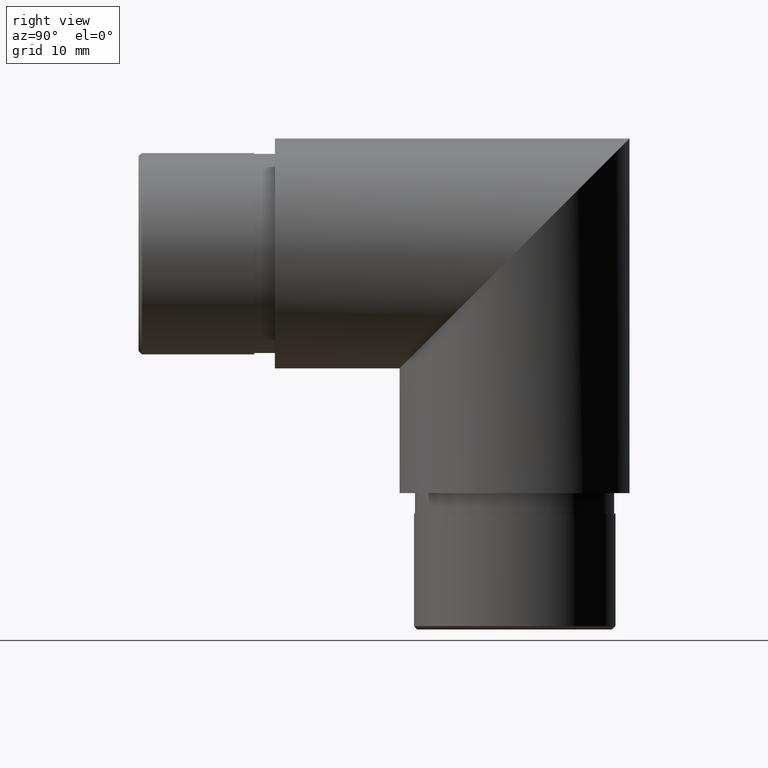
[diagram: clean part render]
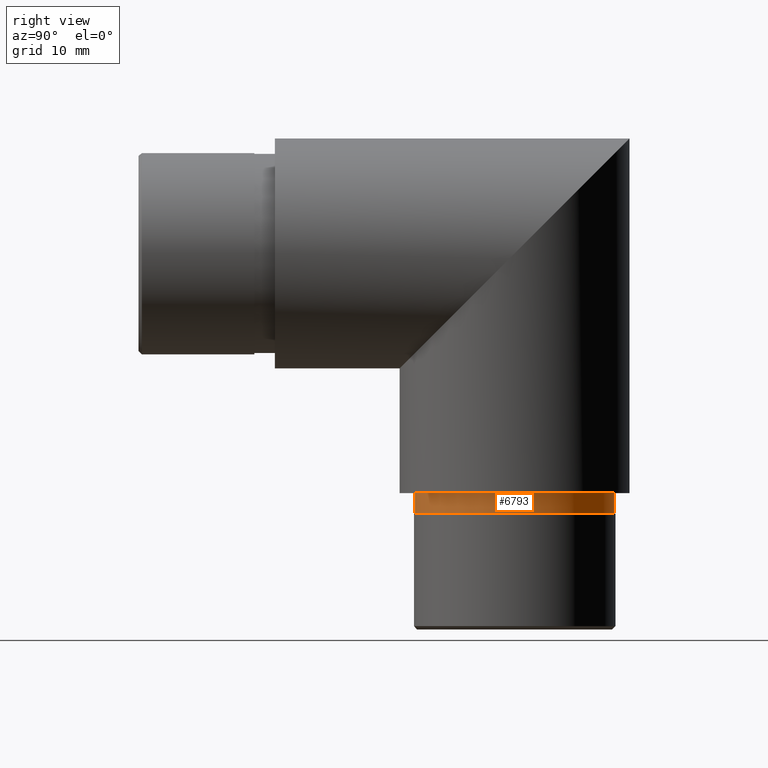
[diagram: same view with one face highlighted and labeled with its STEP entity id]
A machine part, right view. The second image highlights one B-rep face of the part: STEP entity #6793.
In plain terms, the highlighted cylindrical surface (bore or boss wall) has radius 14.6 mm, axis along (-0, 0, 1).
Its self-contained STEP definition (entity closure, byte-faithful):
#468 = EDGE_LOOP ( 'NONE', ( #3538 ) ) ;
#1016 = FACE_OUTER_BOUND ( 'NONE', #4290, .T. ) ;
#1174 = AXIS2_PLACEMENT_3D ( 'NONE', #6487, #9034, #9923 ) ;
#1211 = VERTEX_POINT ( 'NONE', #6611 ) ;
#2033 = FACE_OUTER_BOUND ( 'NONE', #468, .T. ) ;
#2341 = CARTESIAN_POINT ( 'NONE',  ( 0.0000000000000000000, 49.74999999999988600, -35.15000000000003400 ) ) ;
#2450 = DIRECTION ( 'NONE',  ( 0.0000000000000000000, -3.441691376337984500E-015, -1.000000000000000000 ) ) ;
#3099 = CYLINDRICAL_SURFACE ( 'NONE', #5814, 14.60000000000000100 ) ;
#3538 = ORIENTED_EDGE ( 'NONE', *, *, #6256, .T. ) ;
#4077 = VERTEX_POINT ( 'NONE', #2341 ) ;
#4290 = EDGE_LOOP ( 'NONE', ( #9682 ) ) ;
#4718 = DIRECTION ( 'NONE',  ( -0.0000000000000000000, 3.441691376337984500E-015, 1.000000000000000000 ) ) ;
#4860 = DIRECTION ( 'NONE',  ( 0.0000000000000000000, -1.000000000000000000, 3.326866940229492800E-015 ) ) ;
#5201 = AXIS2_PLACEMENT_3D ( 'NONE', #9105, #2450, #10688 ) ;
#5297 = CIRCLE ( 'NONE', #5201, 14.60000000000000100 ) ;
#5814 = AXIS2_PLACEMENT_3D ( 'NONE', #7232, #4718, #4860 ) ;
#6256 = EDGE_CURVE ( 'NONE', #4077, #4077, #10311, .T. ) ;
#6487 = CARTESIAN_POINT ( 'NONE',  ( 0.0000000000000000000, 35.14999999999988500, -35.14999999999998400 ) ) ;
#6611 = CARTESIAN_POINT ( 'NONE',  ( 0.0000000000000000000, 49.74999999999987900, -38.15000000000004100 ) ) ;
#6793 = ADVANCED_FACE ( 'NONE', ( #1016, #2033 ), #3099, .T. ) ;
#7232 = CARTESIAN_POINT ( 'NONE',  ( 0.0000000000000000000, 35.14999999999987800, -38.14999999999999100 ) ) ;
#8309 = EDGE_CURVE ( 'NONE', #1211, #1211, #5297, .T. ) ;
#9034 = DIRECTION ( 'NONE',  ( 0.0000000000000000000, -3.441691376337984500E-015, -1.000000000000000000 ) ) ;
#9105 = CARTESIAN_POINT ( 'NONE',  ( 0.0000000000000000000, 35.14999999999987800, -38.14999999999999100 ) ) ;
#9682 = ORIENTED_EDGE ( 'NONE', *, *, #8309, .F. ) ;
#9923 = DIRECTION ( 'NONE',  ( 0.0000000000000000000, 1.000000000000000000, -3.326866940229492800E-015 ) ) ;
#10311 = CIRCLE ( 'NONE', #1174, 14.60000000000000100 ) ;
#10688 = DIRECTION ( 'NONE',  ( 0.0000000000000000000, 1.000000000000000000, -3.326866940229492800E-015 ) ) ;